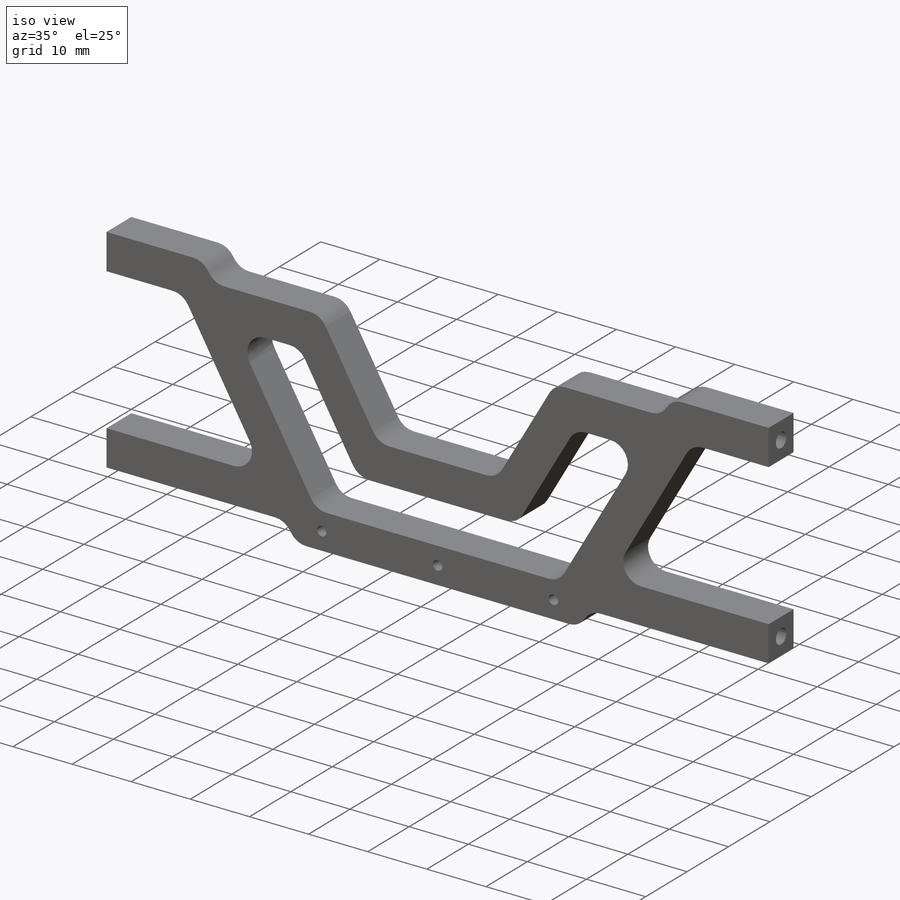
[diagram: iso view]
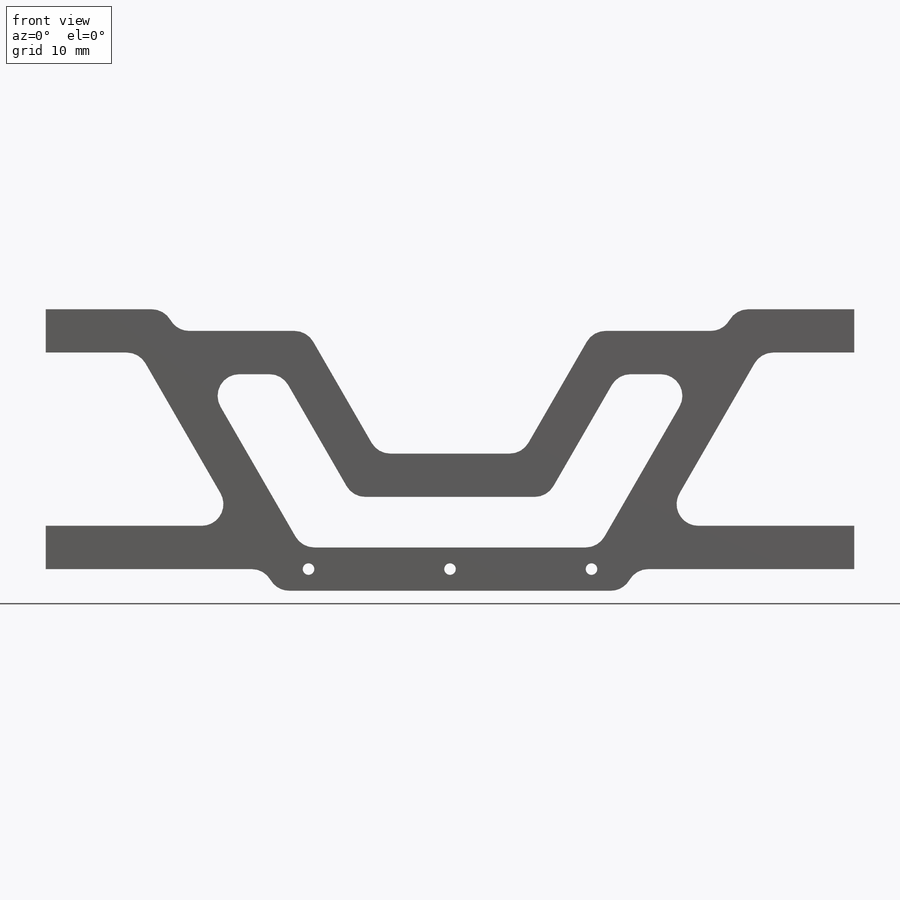
[diagram: front view]
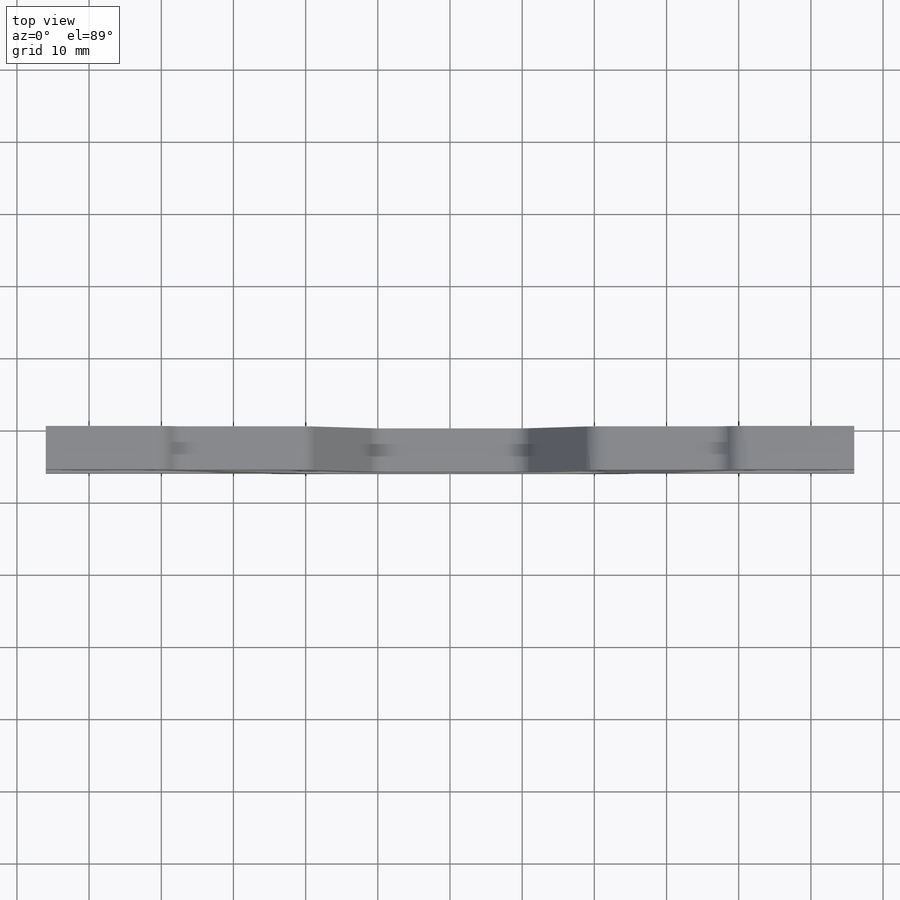
[diagram: top view]
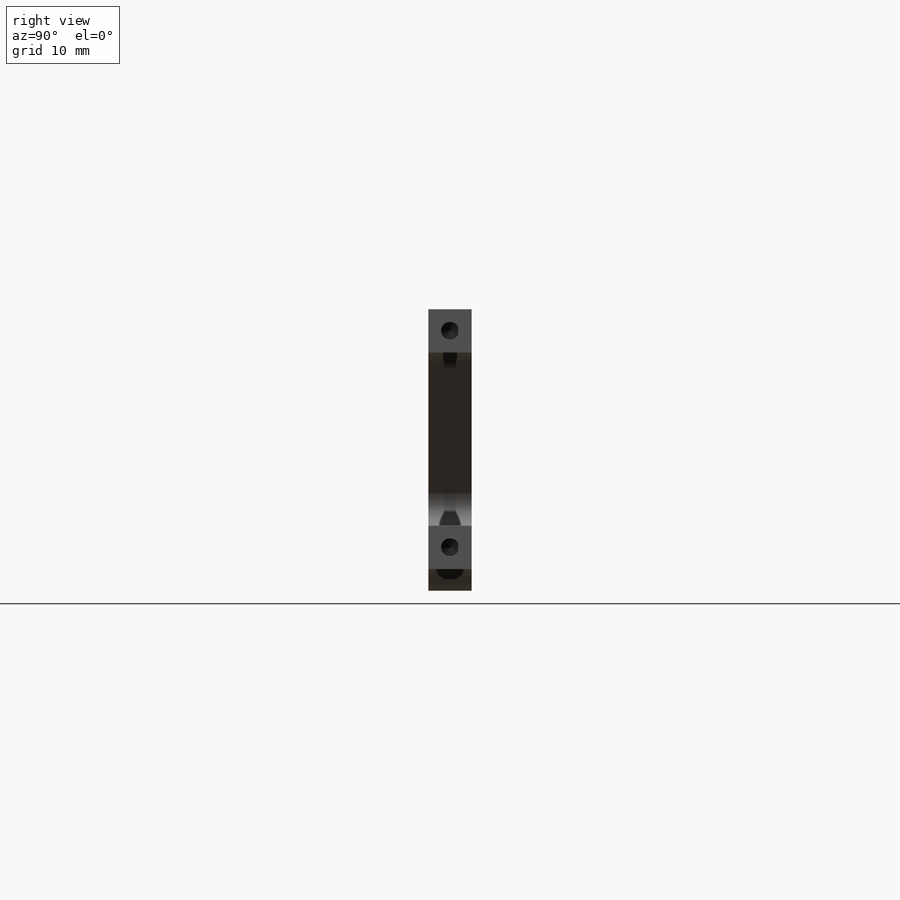
[diagram: right view]
SOLIDWORKS PART (.sldprt)
format: sldprt  version: not decoded by parser v0  size: 352,256 bytes
history: native  units: mm
features: sketch x6, hole x2, material x1, extrude x1, cut_extrude x1, fillet x1, mirror x1 (+11 scaffold rows collapsed)
feature tree (24):
  scaffold x11  (default folders/planes/origin — collapsed)
  material  "Material <not specified>"
  sketch  "Sketch1"  dims[D1=39.0mm D2=112.0mm]
  extrude  "Boss-Extrude1"  Depth=6mm
  sketch  "Sketch2"  dims[c1.D3=12.0mm c1.D1=6.0mm c1.D2=8.0mm c2.D1=6.0mm c2.D2=24.0mm c2.D3=~33.438799mm c3.D3=60.0deg c3.D4=6.0mm c3.D5=3.0mm c3.D6=24.0mm c3.D7=6.0mm c3.D8=6.0mm c3.D9=3.0mm c3.D10=6.0mm c3.D11=6.0mm c3.D12=20.0mm c3.D13=10.0mm]
  cut_extrude  "Cut-Extrude1"  [1 undecoded]
  hole  "Tap Drill for M3 Tap1"  Diameter=2.5mm Depth=10mm
  sketch  "Sketch4"  dims[c1.D1=3.0mm c1.D2=3.0mm c1.D3=~4.129069mm c2.D2=3.0mm c2.D3=3.0mm c3.D2=30.0mm c3.D3=3.0mm]
  sketch  "Sketch3"  dims[hole-wizard template sketch: 50 standard entries collapsed; hole parameters above]
  fillet  "Fillet1"  Radius=3mm
  mirror  "Mirror1"
  hole  "Tap Drill for M2 Tap1"  Diameter=1.6mm Depth=6mm
  sketch  "Sketch7"  dims[D1=19.6mm D2=19.6mm D3=3.0mm D4=3.0mm]
  sketch  "Sketch6"  dims[hole-wizard template sketch: 60 standard entries collapsed; hole parameters kept: c18.Thru Hole Depth=6.0mm]
decode coverage: 10 of 12 modeling features carry decoded parameters
note: ~ marks probable driven/reference dimensions
note: 1 parameter value undecoded
note: suppression state not decoded; provenance and decode notes live in map.json
